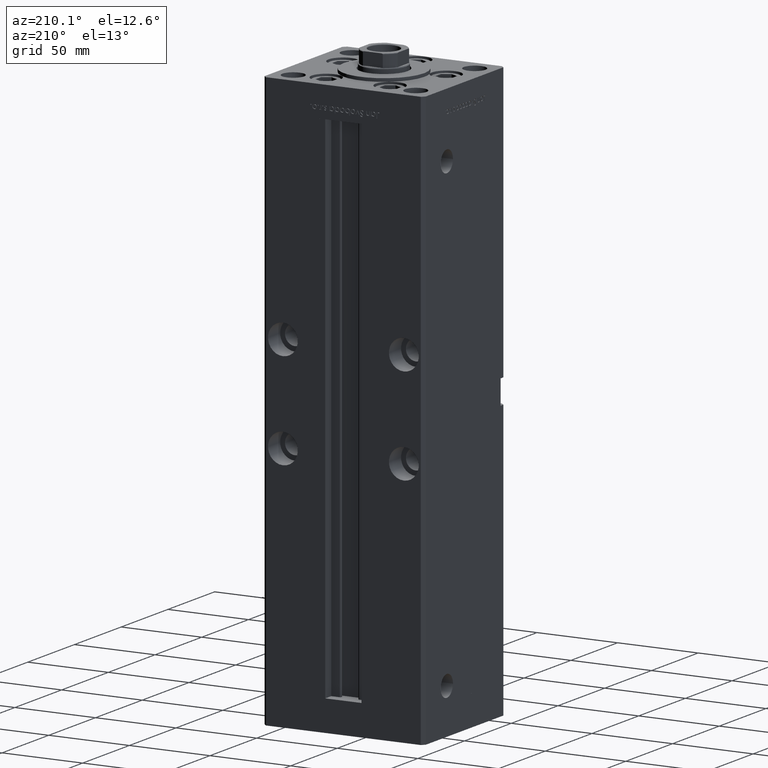
[diagram: clean part render]
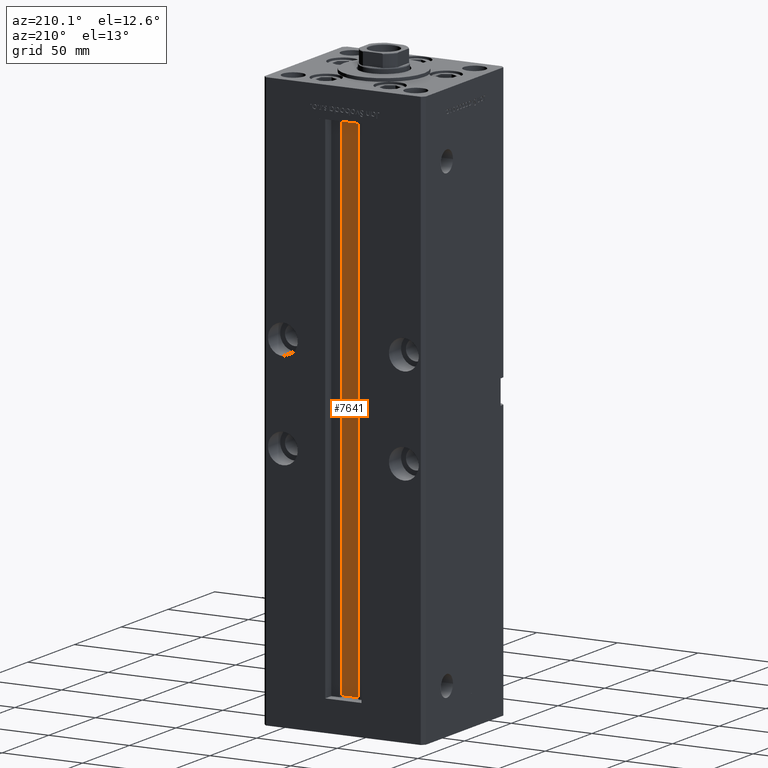
[diagram: same view with one face highlighted and labeled with its STEP entity id]
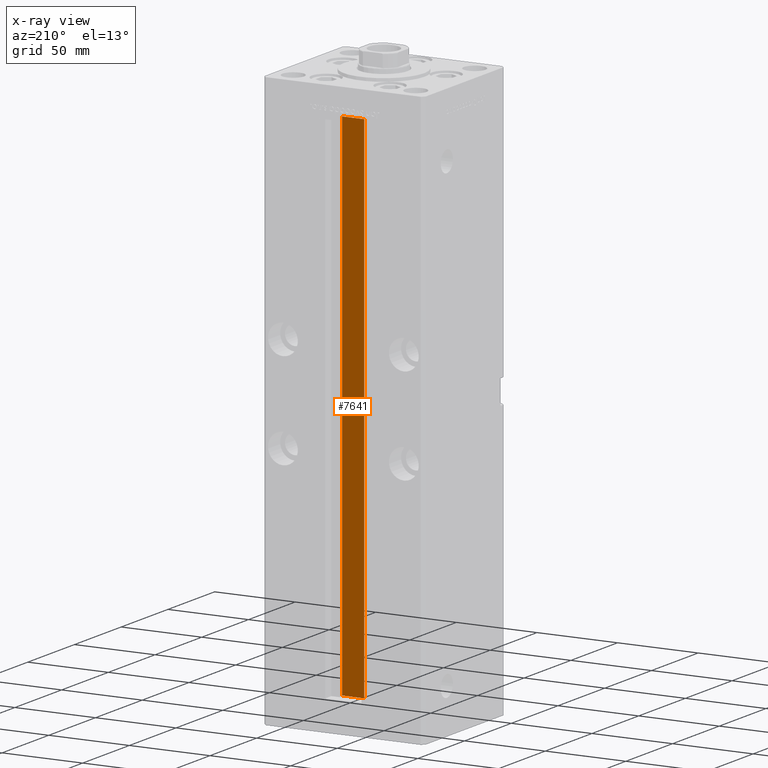
[diagram: x-ray of the same camera — body ghosted, the highlighted face saturated]
A machine part, auxiliary view. The second image highlights one B-rep face of the part: STEP entity #7641.
The next image is the same camera in x-ray: the body ghosted, the highlighted face saturated — about 0% of this face is hidden behind the body in this view.
In plain terms, the highlighted planar face has unit normal (0, -1, 0).
Its self-contained STEP definition (entity closure, byte-faithful):
#3803 = VERTEX_POINT ( 'NONE', #28063 ) ;
#4002 = DIRECTION ( 'NONE',  ( 0.000000000000000000, 0.000000000000000000, -1.000000000000000000 ) ) ;
#5226 = EDGE_CURVE ( 'NONE', #17559, #35874, #45382, .T. ) ;
#5382 = EDGE_CURVE ( 'NONE', #3803, #17559, #18482, .T. ) ;
#5573 = VECTOR ( 'NONE', #43959, 1000.000000000000000 ) ;
#6401 = ORIENTED_EDGE ( 'NONE', *, *, #21273, .F. ) ;
#7641 = ADVANCED_FACE ( 'NONE', ( #40562 ), #20398, .F. ) ;
#11209 = VERTEX_POINT ( 'NONE', #15676 ) ;
#12156 = AXIS2_PLACEMENT_3D ( 'NONE', #45104, #12340, #4002 ) ;
#12340 = DIRECTION ( 'NONE',  ( 0.000000000000000000, -1.000000000000000000, -0.000000000000000000 ) ) ;
#14954 = CARTESIAN_POINT ( 'NONE',  ( 6.876153656360465050, 32.99999999999986500, 0.000000000000000000 ) ) ;
#15676 = CARTESIAN_POINT ( 'NONE',  ( -6.876153656360465050, 32.99999999999986500, 0.000000000000000000 ) ) ;
#17559 = VERTEX_POINT ( 'NONE', #31519 ) ;
#18076 = VECTOR ( 'NONE', #42941, 1000.000000000000000 ) ;
#18482 = LINE ( 'NONE', #26545, #18076 ) ;
#20398 = PLANE ( 'NONE',  #12156 ) ;
#21273 = EDGE_CURVE ( 'NONE', #11209, #3803, #28839, .T. ) ;
#26545 = CARTESIAN_POINT ( 'NONE',  ( 6.876153656360465050, 32.99999999999986500, 0.000000000000000000 ) ) ;
#28063 = CARTESIAN_POINT ( 'NONE',  ( 6.876153656360465050, 32.99999999999986500, 0.000000000000000000 ) ) ;
#28292 = ORIENTED_EDGE ( 'NONE', *, *, #29275, .T. ) ;
#28839 = LINE ( 'NONE', #14954, #5573 ) ;
#29256 = DIRECTION ( 'NONE',  ( -1.000000000000000000, 0.000000000000000000, 0.000000000000000000 ) ) ;
#29275 = EDGE_CURVE ( 'NONE', #11209, #35874, #52298, .T. ) ;
#30709 = EDGE_LOOP ( 'NONE', ( #45837, #6401, #28292, #41560 ) ) ;
#31519 = CARTESIAN_POINT ( 'NONE',  ( 6.876153656360465050, 32.99999999999986500, 318.5000000000000000 ) ) ;
#35874 = VERTEX_POINT ( 'NONE', #40071 ) ;
#40071 = CARTESIAN_POINT ( 'NONE',  ( -6.876153656360465050, 32.99999999999986500, 318.5000000000000000 ) ) ;
#40562 = FACE_OUTER_BOUND ( 'NONE', #30709, .T. ) ;
#41560 = ORIENTED_EDGE ( 'NONE', *, *, #5226, .F. ) ;
#41893 = CARTESIAN_POINT ( 'NONE',  ( 0.000000000000000000, 32.99999999999986500, 318.5000000000000000 ) ) ;
#42109 = VECTOR ( 'NONE', #29256, 1000.000000000000000 ) ;
#42941 = DIRECTION ( 'NONE',  ( -0.000000000000000000, -0.000000000000000000, 1.000000000000000000 ) ) ;
#43433 = CARTESIAN_POINT ( 'NONE',  ( -6.876153656360465050, 32.99999999999986500, 0.000000000000000000 ) ) ;
#43959 = DIRECTION ( 'NONE',  ( 1.000000000000000000, -0.000000000000000000, -0.000000000000000000 ) ) ;
#45104 = CARTESIAN_POINT ( 'NONE',  ( 6.876153656360465050, 32.99999999999986500, 0.000000000000000000 ) ) ;
#45382 = LINE ( 'NONE', #41893, #42109 ) ;
#45837 = ORIENTED_EDGE ( 'NONE', *, *, #5382, .F. ) ;
#47447 = DIRECTION ( 'NONE',  ( -0.000000000000000000, -0.000000000000000000, 1.000000000000000000 ) ) ;
#52298 = LINE ( 'NONE', #43433, #52534 ) ;
#52534 = VECTOR ( 'NONE', #47447, 1000.000000000000000 ) ;